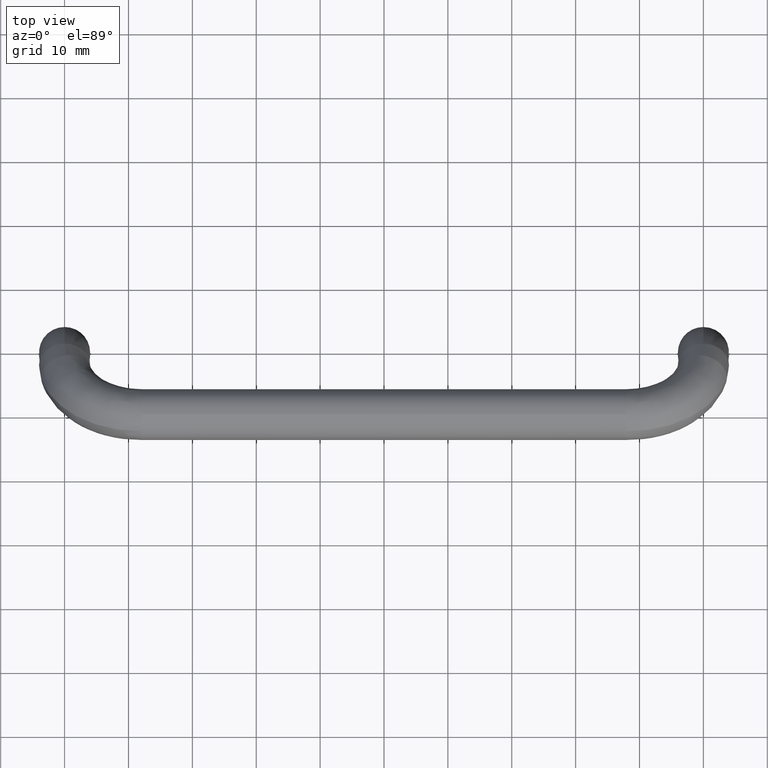
[diagram: clean part render]
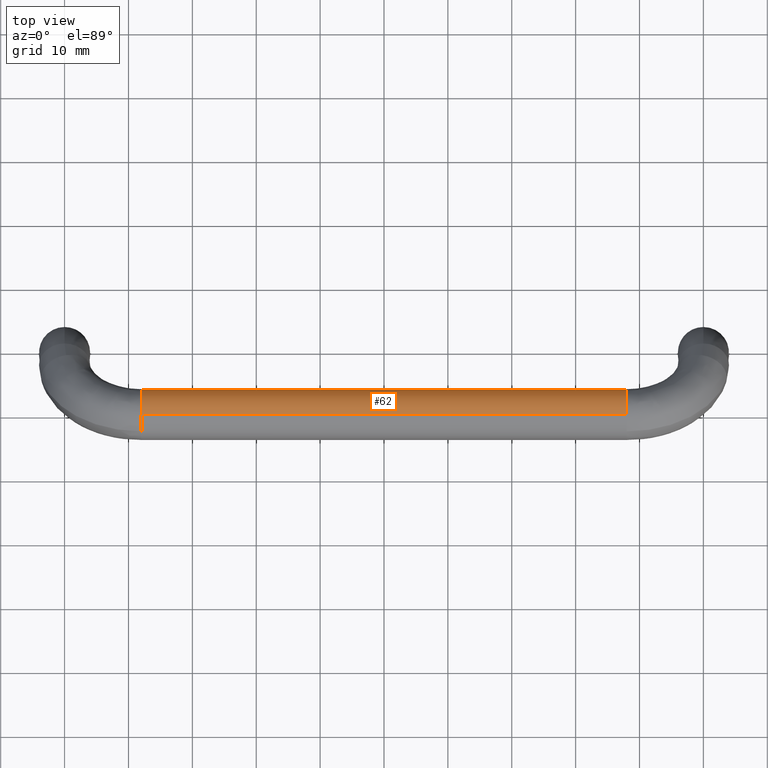
[diagram: same view with one face highlighted and labeled with its STEP entity id]
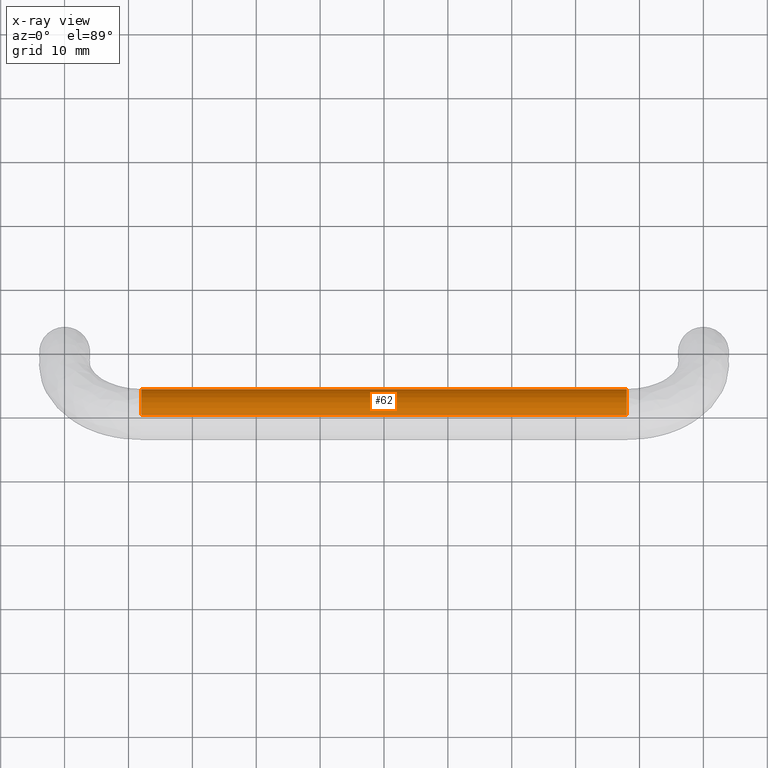
[diagram: x-ray of the same camera — body ghosted, the highlighted face saturated]
A machine part, top view. The second image highlights one B-rep face of the part: STEP entity #62.
The next image is the same camera in x-ray: the body ghosted, the highlighted face saturated — about 0% of this face is hidden behind the body in this view.
In plain terms, the highlighted cylindrical surface (edge-blend (fillet) strip) has radius 4 mm, axis along (-1, -0, 0).
Its self-contained STEP definition (entity closure, byte-faithful):
#62=ADVANCED_FACE('',(#293),#292,.T.);
#292=CYLINDRICAL_SURFACE('',#831,4.00000000000E+00);
#293=FACE_OUTER_BOUND('',#832,.T.);
#828=CARTESIAN_POINT('',(0.00000000000E+00,8.06646416329E-14,4.00000000000E+00));
#829=DIRECTION('',(-1.00000000000E+00,-0.00000000000E+00,0.00000000000E+00));
#830=DIRECTION('',(0.00000000000E+00,0.00000000000E+00,1.00000000000E+00));
#831=AXIS2_PLACEMENT_3D('',#828,#829,#830);
#832=EDGE_LOOP('',(#966,#967,#968,#969,#970,#971));
#966=ORIENTED_EDGE('',*,*,#1054,.T.);
#967=ORIENTED_EDGE('',*,*,#1058,.T.);
#968=ORIENTED_EDGE('',*,*,#1064,.F.);
#969=ORIENTED_EDGE('',*,*,#1046,.F.);
#970=ORIENTED_EDGE('',*,*,#1043,.F.);
#971=ORIENTED_EDGE('',*,*,#1065,.T.);
#1043=EDGE_CURVE('',#1329,#1336,#1337,.T.);
#1046=EDGE_CURVE('',#1336,#1355,#1356,.T.);
#1054=EDGE_CURVE('',#1408,#1401,#1409,.T.);
#1058=EDGE_CURVE('',#1401,#1428,#1435,.T.);
#1064=EDGE_CURVE('',#1355,#1428,#1474,.T.);
#1065=EDGE_CURVE('',#1329,#1408,#1480,.T.);
#1329=VERTEX_POINT('',#1699);
#1336=VERTEX_POINT('',#1704);
#1337=CIRCLE('',#1708,4.00000000000E+00);
#1355=VERTEX_POINT('',#1717);
#1356=CIRCLE('',#1721,4.00000000000E+00);
#1401=VERTEX_POINT('',#1747);
#1408=VERTEX_POINT('',#1751);
#1409=CIRCLE('',#1755,4.00000000000E+00);
#1428=VERTEX_POINT('',#1766);
#1435=CIRCLE('',#1774,4.00000000000E+00);
#1474=(BOUNDED_CURVE() B_SPLINE_CURVE(1,(#1796,#1797),.UNSPECIFIED.,.F.,.F.) B_SPLINE_CURVE_WITH_KNOTS((2,2),(8.33333332085E-02,9.16666666563E-01),.UNSPECIFIED.) CURVE() GEOMETRIC_REPRESENTATION_ITEM() RATIONAL_B_SPLINE_CURVE((1.00000000000E+00,1.00000000000E+00)) REPRESENTATION_ITEM('') );
#1480=(BOUNDED_CURVE() B_SPLINE_CURVE(1,(#1798,#1799),.UNSPECIFIED.,.F.,.F.) B_SPLINE_CURVE_WITH_KNOTS((2,2),(8.33333333333E-02,9.16666666667E-01),.UNSPECIFIED.) CURVE() GEOMETRIC_REPRESENTATION_ITEM() RATIONAL_B_SPLINE_CURVE((7.50000000000E-01,7.50000000000E-01)) REPRESENTATION_ITEM('') );
#1699=CARTESIAN_POINT('',(3.80000000001E+01,-3.83046434336E-05,1.83405412072E-10));
#1704=CARTESIAN_POINT('',(3.80000000001E+01,2.67241983800E+00,1.02373183173E+00));
#1705=CARTESIAN_POINT('',(3.80000000001E+01,8.06646416329E-14,4.00000000000E+00));
#1706=DIRECTION('',(1.00000000000E+00,0.00000000000E+00,0.00000000000E+00));
#1707=DIRECTION('',(0.00000000000E+00,-6.68105169568E-01,7.44066853446E-01));
#1708=AXIS2_PLACEMENT_3D('',#1705,#1706,#1707);
#1717=CARTESIAN_POINT('',(3.80000000001E+01,8.08745777671E-11,8.00000000000E+00));
#1718=CARTESIAN_POINT('',(3.80000000001E+01,8.06646416329E-14,4.00000000000E+00));
#1719=DIRECTION('',(1.00000000000E+00,0.00000000000E+00,0.00000000000E+00));
#1720=DIRECTION('',(0.00000000000E+00,-6.68105169568E-01,7.44066853446E-01));
#1721=AXIS2_PLACEMENT_3D('',#1718,#1719,#1720);
#1747=CARTESIAN_POINT('',(-3.80000000001E+01,2.67241983804E+00,1.02373183176E+00));
#1751=CARTESIAN_POINT('',(-3.80000000001E+01,7.95711153217E-14,7.39274980074E-32));
#1752=CARTESIAN_POINT('',(-3.80000000001E+01,8.06646416329E-14,4.00000000000E+00));
#1753=DIRECTION('',(1.00000000000E+00,0.00000000000E+00,-0.00000000000E+00));
#1754=DIRECTION('',(-0.00000000000E+00,-1.50920942425E-16,-1.00000000000E+00));
#1755=AXIS2_PLACEMENT_3D('',#1752,#1753,#1754);
#1766=CARTESIAN_POINT('',(-3.80000000001E+01,8.14163551392E-14,8.00000000000E+00));
#1771=CARTESIAN_POINT('',(-3.80000000001E+01,8.06646416329E-14,4.00000000000E+00));
#1772=DIRECTION('',(1.00000000000E+00,0.00000000000E+00,-0.00000000000E+00));
#1773=DIRECTION('',(-0.00000000000E+00,-1.50920942425E-16,-1.00000000000E+00));
#1774=AXIS2_PLACEMENT_3D('',#1771,#1772,#1773);
#1796=CARTESIAN_POINT('',(3.80000000115E+01,8.06646416329E-14,8.00000000000E+00));
#1797=CARTESIAN_POINT('',(-3.79999999906E+01,8.06646416329E-14,8.00000000000E+00));
#1798=CARTESIAN_POINT('',(3.80000000001E+01,8.06762064561E-14,0.00000000000E+00));
#1799=CARTESIAN_POINT('',(-3.80000000001E+01,8.06762064561E-14,0.00000000000E+00));